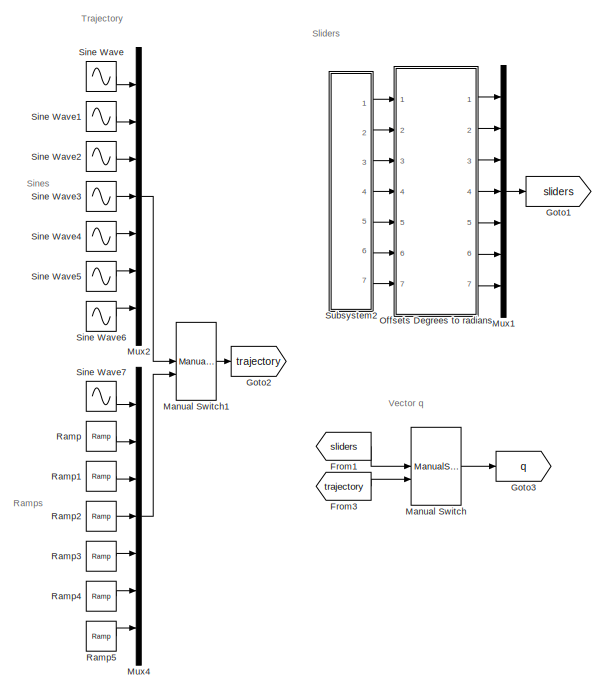
[diagram: root canvas - part 1/2, left side, full height]
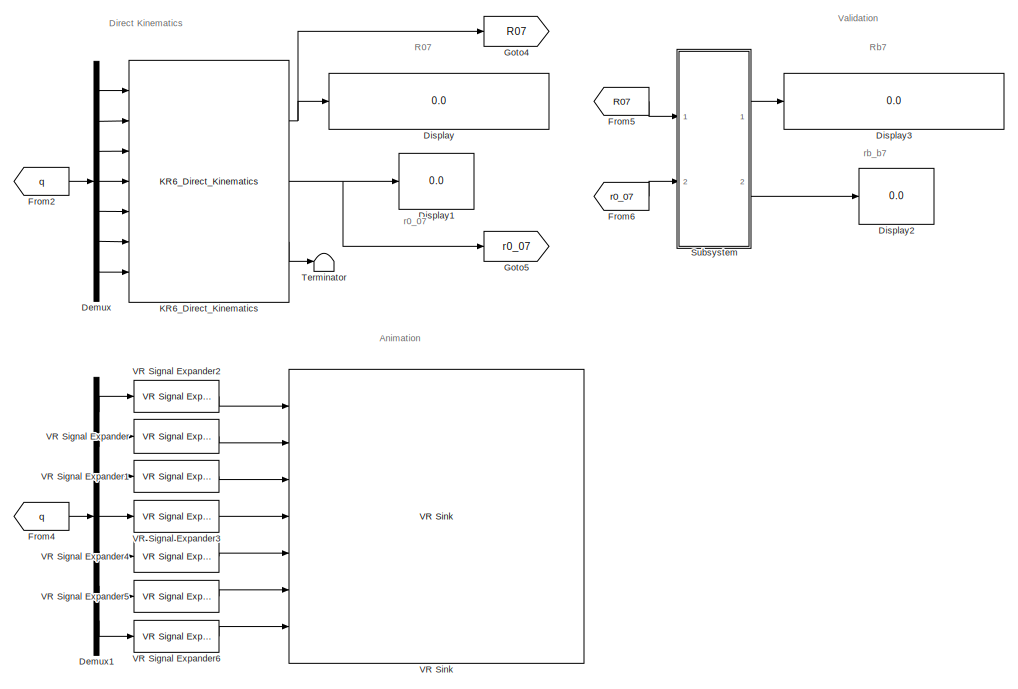
[diagram: root canvas - part 2/2, right side, full height]
MODEL slx_87ed136f45bc
KIND model
CONFIG AbsTol = auto
CONFIG EnableMultiTasking = off
CONFIG FixedStep = auto
CONFIG MaxStep = auto
CONFIG MinStep = auto
CONFIG RelTol = 1e-3
CONFIG SampleTimeConstraint = Unconstrained
CONFIG Solver = VariableStepAuto
CONFIG SolverName = VariableStepAuto
CONFIG StartTime = 0.0
CONFIG StopTime = inf
BLOCK [Demux] Demux
  DisplayOption = bar
  Outputs = 7
  Ports = [1, 7]
BLOCK [Demux] Demux1
  DisplayOption = bar
  Outputs = 7
  Ports = [1, 7]
BLOCK [Display] Display
  Decimation = 2
  Ports = [1]
BLOCK [Display] Display1
  Decimation = 1
  Ports = [1]
BLOCK [Display] Display2
  Decimation = 1
  Ports = [1]
BLOCK [Display] Display3
  Decimation = 1
  Ports = [1]
BLOCK [From] From1
  GotoTag = sliders
BLOCK [From] From2
  GotoTag = q
BLOCK [From] From3
  GotoTag = trajectory
BLOCK [From] From4
  GotoTag = q
BLOCK [From] From5
  GotoTag = R07
BLOCK [From] From6
  GotoTag = r0_07
BLOCK [Goto] Goto1
  GotoTag = sliders
BLOCK [Goto] Goto2
  GotoTag = trajectory
BLOCK [Goto] Goto3
  GotoTag = q
BLOCK [Goto] Goto4
  GotoTag = R07
BLOCK [Goto] Goto5
  GotoTag = r0_07
BLOCK [Reference] KR6_Direct_Kinematics  REF=KR6_Lib/KR6_Direct_Kinematics
  Ports = [7, 3]
  SourceBlock = KR6_Lib/KR6_Direct_Kinematics
  SourceType = SubSystem
BLOCK [ManualSwitch] Manual Switch
BLOCK [ManualSwitch] Manual Switch1
BLOCK [Mux] Mux1
  DisplayOption = bar
  Inputs = 7
  Ports = [7, 1]
BLOCK [Mux] Mux2
  DisplayOption = bar
  Inputs = 7
  Ports = [7, 1]
BLOCK [Mux] Mux4
  DisplayOption = bar
  Inputs = 7
  Ports = [7, 1]
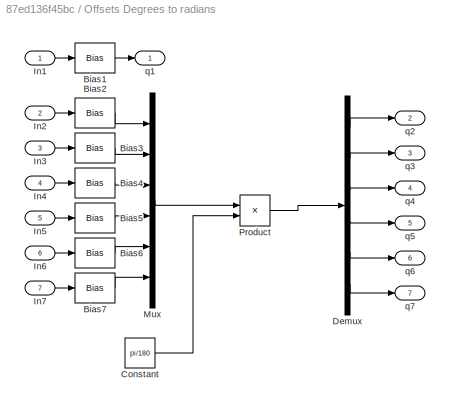
BLOCK [SubSystem] Offsets Degrees to radians
  Ports = [7, 7]
  RequestExecContextInheritance = off
BLOCK [Bias] Offsets Degrees to radians/Bias1
  SaturateOnIntegerOverflow = off
BLOCK [Bias] Offsets Degrees to radians/Bias2
  SaturateOnIntegerOverflow = off
BLOCK [Bias] Offsets Degrees to radians/Bias3
  SaturateOnIntegerOverflow = off
BLOCK [Bias] Offsets Degrees to radians/Bias4
  Bias = -90
  SaturateOnIntegerOverflow = off
BLOCK [Bias] Offsets Degrees to radians/Bias5
  SaturateOnIntegerOverflow = off
BLOCK [Bias] Offsets Degrees to radians/Bias6
  SaturateOnIntegerOverflow = off
BLOCK [Bias] Offsets Degrees to radians/Bias7
  Bias = 180
  SaturateOnIntegerOverflow = off
BLOCK [Constant] Offsets Degrees to radians/Constant
  Value = pi/180
BLOCK [Demux] Offsets Degrees to radians/Demux
  DisplayOption = bar
  Outputs = 6
  Ports = [1, 6]
BLOCK [Inport] Offsets Degrees to radians/In1
  IconDisplay = Port number
BLOCK [Inport] Offsets Degrees to radians/In2
  IconDisplay = Port number
  Port = 2
BLOCK [Inport] Offsets Degrees to radians/In3
  IconDisplay = Port number
  Port = 3
BLOCK [Inport] Offsets Degrees to radians/In4
  IconDisplay = Port number
  Port = 4
BLOCK [Inport] Offsets Degrees to radians/In5
  IconDisplay = Port number
  Port = 5
BLOCK [Inport] Offsets Degrees to radians/In6
  IconDisplay = Port number
  Port = 6
BLOCK [Inport] Offsets Degrees to radians/In7
  IconDisplay = Port number
  Port = 7
BLOCK [Mux] Offsets Degrees to radians/Mux
  DisplayOption = bar
  Inputs = 6
  Ports = [6, 1]
BLOCK [Product] Offsets Degrees to radians/Product
  InputSameDT = off
  OutDataTypeStr = Inherit: Inherit via internal rule
  Ports = [2, 1]
  RndMeth = Floor
  SaturateOnIntegerOverflow = off
BLOCK [Outport] Offsets Degrees to radians/q1
  IconDisplay = Port number
BLOCK [Outport] Offsets Degrees to radians/q2
  IconDisplay = Port number
  Port = 2
BLOCK [Outport] Offsets Degrees to radians/q3
  IconDisplay = Port number
  Port = 3
BLOCK [Outport] Offsets Degrees to radians/q4
  IconDisplay = Port number
  Port = 4
BLOCK [Outport] Offsets Degrees to radians/q5
  IconDisplay = Port number
  Port = 5
BLOCK [Outport] Offsets Degrees to radians/q6
  IconDisplay = Port number
  Port = 6
BLOCK [Outport] Offsets Degrees to radians/q7
  IconDisplay = Port number
  Port = 7
BLOCK [Reference] Ramp  REF=simulink/Sources/Ramp
  Ports = [0, 1]
  SourceBlock = simulink/Sources/Ramp
  SourceProductBaseCode = SL
  SourceProductName = Simulink
  SourceType = Ramp
BLOCK [Reference] Ramp1  REF=simulink/Sources/Ramp
  Ports = [0, 1]
  SourceBlock = simulink/Sources/Ramp
  SourceProductBaseCode = SL
  SourceProductName = Simulink
  SourceType = Ramp
BLOCK [Reference] Ramp2  REF=simulink/Sources/Ramp
  Ports = [0, 1]
  SourceBlock = simulink/Sources/Ramp
  SourceProductBaseCode = SL
  SourceProductName = Simulink
  SourceType = Ramp
BLOCK [Reference] Ramp3  REF=simulink/Sources/Ramp
  Ports = [0, 1]
  SourceBlock = simulink/Sources/Ramp
  SourceProductBaseCode = SL
  SourceProductName = Simulink
  SourceType = Ramp
BLOCK [Reference] Ramp4  REF=simulink/Sources/Ramp
  Ports = [0, 1]
  SourceBlock = simulink/Sources/Ramp
  SourceProductBaseCode = SL
  SourceProductName = Simulink
  SourceType = Ramp
BLOCK [Reference] Ramp5  REF=simulink/Sources/Ramp
  Ports = [0, 1]
  SourceBlock = simulink/Sources/Ramp
  SourceProductBaseCode = SL
  SourceProductName = Simulink
  SourceType = Ramp
BLOCK [Sin] Sine Wave
  Frequency = 0.2
  Ports = [0, 1]
  SampleTime = 0
BLOCK [Sin] Sine Wave1
  Amplitude = 3
  Frequency = 0.2
  Ports = [0, 1]
  SampleTime = 0
BLOCK [Sin] Sine Wave2
  Bias = -1.5
  Frequency = 0.2
  Ports = [0, 1]
  SampleTime = 0
BLOCK [Sin] Sine Wave3
  Amplitude = 0.5
  Frequency = 0.2
  Ports = [0, 1]
  SampleTime = 0
BLOCK [Sin] Sine Wave4
  Frequency = 0.2
  Ports = [0, 1]
  SampleTime = 0
BLOCK [Sin] Sine Wave5
  Amplitude = 1.5
  Frequency = 0.2
  Ports = [0, 1]
  SampleTime = 0
BLOCK [Sin] Sine Wave6
  Amplitude = 1.5
  Frequency = 0.2
  Ports = [0, 1]
  SampleTime = 0
BLOCK [Sin] Sine Wave7
  Amplitude = 0
  Frequency = 0.1
  Ports = [0, 1]
  SampleTime = 0
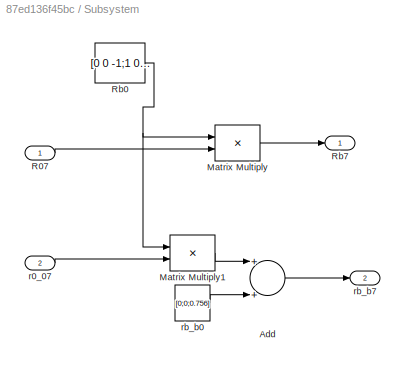
BLOCK [SubSystem] Subsystem
  Ports = [2, 2]
  RequestExecContextInheritance = off
BLOCK [Sum] Subsystem/Add
  InputSameDT = off
  OutDataTypeStr = Inherit: Inherit via internal rule
  Ports = [2, 1]
  SaturateOnIntegerOverflow = off
BLOCK [Product] Subsystem/Matrix Multiply
  InputSameDT = off
  Multiplication = Matrix(*)
  OutDataTypeStr = Inherit: Inherit via internal rule
  Ports = [2, 1]
  RndMeth = Floor
  SaturateOnIntegerOverflow = off
BLOCK [Product] Subsystem/Matrix Multiply1
  InputSameDT = off
  Multiplication = Matrix(*)
  OutDataTypeStr = Inherit: Inherit via internal rule
  Ports = [2, 1]
  RndMeth = Floor
  SaturateOnIntegerOverflow = off
BLOCK [Inport] Subsystem/R07
  IconDisplay = Port number
BLOCK [Constant] Subsystem/Rb0
  Value = [0 0 -1;1 0 0; 0 -1 0]
BLOCK [Outport] Subsystem/Rb7
  IconDisplay = Port number
BLOCK [Inport] Subsystem/r0_07
  IconDisplay = Port number
  Port = 2
BLOCK [Constant] Subsystem/rb_b0
  Value = [0;0;0.756]
BLOCK [Outport] Subsystem/rb_b7
  IconDisplay = Port number
  Port = 2
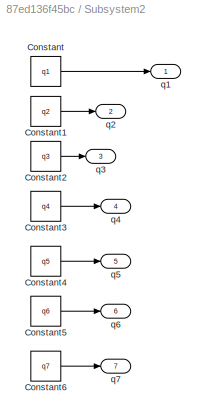
BLOCK [SubSystem] Subsystem2
  Ports = [0, 7]
  RequestExecContextInheritance = off
BLOCK [Constant] Subsystem2/Constant
  Value = q1
BLOCK [Constant] Subsystem2/Constant1
  Value = q2
BLOCK [Constant] Subsystem2/Constant2
  Value = q3
BLOCK [Constant] Subsystem2/Constant3
  Value = q4
BLOCK [Constant] Subsystem2/Constant4
  Value = q5
BLOCK [Constant] Subsystem2/Constant5
  Value = q6
BLOCK [Constant] Subsystem2/Constant6
  Value = q7
BLOCK [Outport] Subsystem2/q1
  IconDisplay = Port number
BLOCK [Outport] Subsystem2/q2
  IconDisplay = Port number
  Port = 2
BLOCK [Outport] Subsystem2/q3
  IconDisplay = Port number
  Port = 3
BLOCK [Outport] Subsystem2/q4
  IconDisplay = Port number
  Port = 4
BLOCK [Outport] Subsystem2/q5
  IconDisplay = Port number
  Port = 5
BLOCK [Outport] Subsystem2/q6
  IconDisplay = Port number
  Port = 6
BLOCK [Outport] Subsystem2/q7
  IconDisplay = Port number
  Port = 7
BLOCK [Terminator] Terminator
BLOCK [Reference] VR Signal Expander  REF=vrlib/VR Signal Expander
  Ports = [1, 1]
  SourceBlock = vrlib/VR Signal Expander
  SourceProductBaseCode = VR
  SourceProductName = Simulink 3D Animation
  SourceType = VR Signal Expander
BLOCK [Reference] VR Signal Expander1  REF=vrlib/VR Signal Expander
  Ports = [1, 1]
  SourceBlock = vrlib/VR Signal Expander
  SourceProductBaseCode = VR
  SourceProductName = Simulink 3D Animation
  SourceType = VR Signal Expander
BLOCK [Reference] VR Signal Expander2  REF=vrlib/VR Signal Expander
  Ports = [1, 1]
  SourceBlock = vrlib/VR Signal Expander
  SourceProductBaseCode = VR
  SourceProductName = Simulink 3D Animation
  SourceType = VR Signal Expander
BLOCK [Reference] VR Signal Expander3  REF=vrlib/VR Signal Expander
  Ports = [1, 1]
  SourceBlock = vrlib/VR Signal Expander
  SourceProductBaseCode = VR
  SourceProductName = Simulink 3D Animation
  SourceType = VR Signal Expander
BLOCK [Reference] VR Signal Expander4  REF=vrlib/VR Signal Expander
  Ports = [1, 1]
  SourceBlock = vrlib/VR Signal Expander
  SourceProductBaseCode = VR
  SourceProductName = Simulink 3D Animation
  SourceType = VR Signal Expander
BLOCK [Reference] VR Signal Expander5  REF=vrlib/VR Signal Expander
  Ports = [1, 1]
  SourceBlock = vrlib/VR Signal Expander
  SourceProductBaseCode = VR
  SourceProductName = Simulink 3D Animation
  SourceType = VR Signal Expander
BLOCK [Reference] VR Signal Expander6  REF=vrlib/VR Signal Expander
  Ports = [1, 1]
  SourceBlock = vrlib/VR Signal Expander
  SourceProductBaseCode = VR
  SourceProductName = Simulink 3D Animation
  SourceType = VR Signal Expander
BLOCK [Reference] VR Sink  REF=vrlib/VR Sink
  InstantiateOnLoad = on
  Ports = [7]
  SourceBlock = vrlib/VR Sink
  SourceProductBaseCode = VR
  SourceProductName = Simulink 3D Animation
  SourceType = Virtual Reality Sink
ANNOTATION (root): Animation
ANNOTATION (root): Direct Kinematics
ANNOTATION (root): Validation
ANNOTATION (root): Vector q
ANNOTATION (root): R07
ANNOTATION (root): Ramps
ANNOTATION (root): Rb7
ANNOTATION (root): Sines
ANNOTATION (root): Sliders
ANNOTATION (root): Trajectory
ANNOTATION (root): r0_07
ANNOTATION (root): rb_b7
LINE Demux1:1 -> VR Signal Expander2:1
LINE Demux1:2 -> VR Signal Expander:1
LINE Demux1:3 -> VR Signal Expander1:1
LINE Demux1:4 -> VR Signal Expander3:1
LINE Demux1:5 -> VR Signal Expander4:1
LINE Demux1:6 -> VR Signal Expander5:1
LINE Demux1:7 -> VR Signal Expander6:1
LINE Demux:1 -> KR6_Direct_Kinematics:1
LINE Demux:2 -> KR6_Direct_Kinematics:2
LINE Demux:3 -> KR6_Direct_Kinematics:3
LINE Demux:4 -> KR6_Direct_Kinematics:4
LINE Demux:5 -> KR6_Direct_Kinematics:5
LINE Demux:6 -> KR6_Direct_Kinematics:6
LINE Demux:7 -> KR6_Direct_Kinematics:7
LINE From1:1 -> Manual Switch:1
LINE From2:1 -> Demux:1
LINE From3:1 -> Manual Switch:2
LINE From4:1 -> Demux1:1
LINE From5:1 -> Subsystem:1
LINE From6:1 -> Subsystem:2
NET KR6_Direct_Kinematics:1 -> Display:1, Goto4:1
NET KR6_Direct_Kinematics:2 -> Display1:1, Goto5:1
LINE KR6_Direct_Kinematics:3 -> Terminator:1
LINE Manual Switch1:1 -> Goto2:1
LINE Manual Switch:1 -> Goto3:1
LINE Mux1:1 -> Goto1:1
LINE Mux2:1 -> Manual Switch1:1
LINE Mux4:1 -> Manual Switch1:2
LINE Offsets Degrees to radians/Bias1:1 -> Offsets Degrees to radians/q1:1
LINE Offsets Degrees to radians/Bias2:1 -> Offsets Degrees to radians/Mux:1
LINE Offsets Degrees to radians/Bias3:1 -> Offsets Degrees to radians/Mux:2
LINE Offsets Degrees to radians/Bias4:1 -> Offsets Degrees to radians/Mux:3
LINE Offsets Degrees to radians/Bias5:1 -> Offsets Degrees to radians/Mux:4
LINE Offsets Degrees to radians/Bias6:1 -> Offsets Degrees to radians/Mux:5
LINE Offsets Degrees to radians/Bias7:1 -> Offsets Degrees to radians/Mux:6
LINE Offsets Degrees to radians/Constant:1 -> Offsets Degrees to radians/Product:2
LINE Offsets Degrees to radians/Demux:1 -> Offsets Degrees to radians/q2:1
LINE Offsets Degrees to radians/Demux:2 -> Offsets Degrees to radians/q3:1
LINE Offsets Degrees to radians/Demux:3 -> Offsets Degrees to radians/q4:1
LINE Offsets Degrees to radians/Demux:4 -> Offsets Degrees to radians/q5:1
LINE Offsets Degrees to radians/Demux:5 -> Offsets Degrees to radians/q6:1
LINE Offsets Degrees to radians/Demux:6 -> Offsets Degrees to radians/q7:1
LINE Offsets Degrees to radians/In1:1 -> Offsets Degrees to radians/Bias1:1
LINE Offsets Degrees to radians/In2:1 -> Offsets Degrees to radians/Bias2:1
LINE Offsets Degrees to radians/In3:1 -> Offsets Degrees to radians/Bias3:1
LINE Offsets Degrees to radians/In4:1 -> Offsets Degrees to radians/Bias4:1
LINE Offsets Degrees to radians/In5:1 -> Offsets Degrees to radians/Bias5:1
LINE Offsets Degrees to radians/In6:1 -> Offsets Degrees to radians/Bias6:1
LINE Offsets Degrees to radians/In7:1 -> Offsets Degrees to radians/Bias7:1
LINE Offsets Degrees to radians/Mux:1 -> Offsets Degrees to radians/Product:1
LINE Offsets Degrees to radians/Product:1 -> Offsets Degrees to radians/Demux:1
LINE Offsets Degrees to radians:1 -> Mux1:1
LINE Offsets Degrees to radians:2 -> Mux1:2
LINE Offsets Degrees to radians:3 -> Mux1:3
LINE Offsets Degrees to radians:4 -> Mux1:4
LINE Offsets Degrees to radians:5 -> Mux1:5
LINE Offsets Degrees to radians:6 -> Mux1:6
LINE Offsets Degrees to radians:7 -> Mux1:7
LINE Ramp1:1 -> Mux4:3
LINE Ramp2:1 -> Mux4:4
LINE Ramp3:1 -> Mux4:5
LINE Ramp4:1 -> Mux4:6
LINE Ramp5:1 -> Mux4:7
LINE Ramp:1 -> Mux4:2
LINE Sine Wave1:1 -> Mux2:2
LINE Sine Wave2:1 -> Mux2:3
LINE Sine Wave3:1 -> Mux2:4
LINE Sine Wave4:1 -> Mux2:5
LINE Sine Wave5:1 -> Mux2:6
LINE Sine Wave6:1 -> Mux2:7
LINE Sine Wave7:1 -> Mux4:1
LINE Sine Wave:1 -> Mux2:1
LINE Subsystem/Add:1 -> Subsystem/rb_b7:1
LINE Subsystem/Matrix Multiply1:1 -> Subsystem/Add:1
LINE Subsystem/Matrix Multiply:1 -> Subsystem/Rb7:1
LINE Subsystem/R07:1 -> Subsystem/Matrix Multiply:2
NET Subsystem/Rb0:1 -> Subsystem/Matrix Multiply1:1, Subsystem/Matrix Multiply:1
LINE Subsystem/r0_07:1 -> Subsystem/Matrix Multiply1:2
LINE Subsystem/rb_b0:1 -> Subsystem/Add:2
LINE Subsystem2/Constant1:1 -> Subsystem2/q2:1
LINE Subsystem2/Constant2:1 -> Subsystem2/q3:1
LINE Subsystem2/Constant3:1 -> Subsystem2/q4:1
LINE Subsystem2/Constant4:1 -> Subsystem2/q5:1
LINE Subsystem2/Constant5:1 -> Subsystem2/q6:1
LINE Subsystem2/Constant6:1 -> Subsystem2/q7:1
LINE Subsystem2/Constant:1 -> Subsystem2/q1:1
LINE Subsystem2:1 -> Offsets Degrees to radians:1
LINE Subsystem2:2 -> Offsets Degrees to radians:2
LINE Subsystem2:3 -> Offsets Degrees to radians:3
LINE Subsystem2:4 -> Offsets Degrees to radians:4
LINE Subsystem2:5 -> Offsets Degrees to radians:5
LINE Subsystem2:6 -> Offsets Degrees to radians:6
LINE Subsystem2:7 -> Offsets Degrees to radians:7
LINE Subsystem:1 -> Display3:1
LINE Subsystem:2 -> Display2:1
LINE VR Signal Expander1:1 -> VR Sink:3
LINE VR Signal Expander2:1 -> VR Sink:1
LINE VR Signal Expander3:1 -> VR Sink:4
LINE VR Signal Expander4:1 -> VR Sink:5
LINE VR Signal Expander5:1 -> VR Sink:6
LINE VR Signal Expander6:1 -> VR Sink:7
LINE VR Signal Expander:1 -> VR Sink:2
note: NET lines group one-source signal fan-out (src -> all destinations, sorted); 1:1 wires keep LINE
